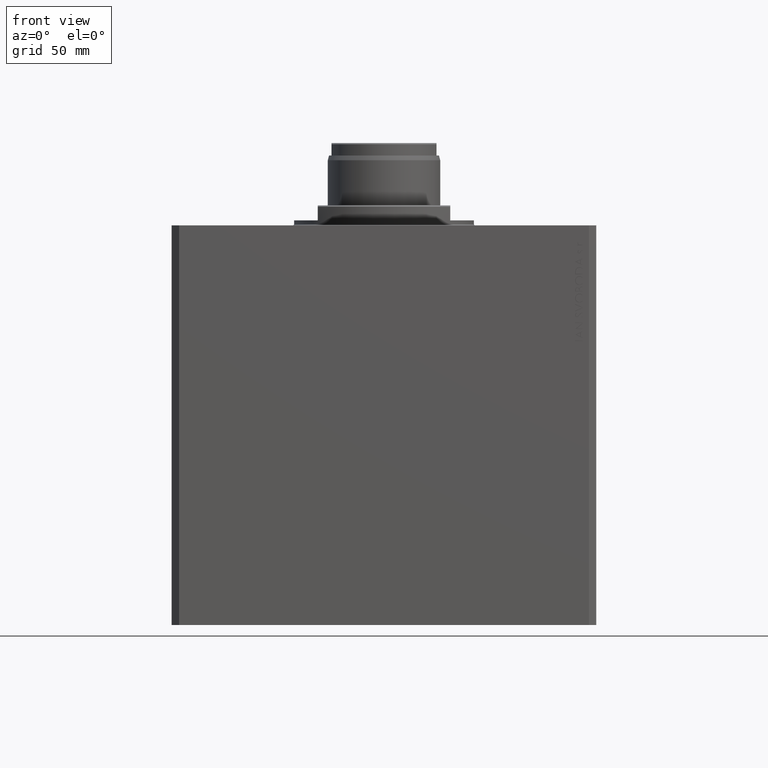
[diagram: clean part render]
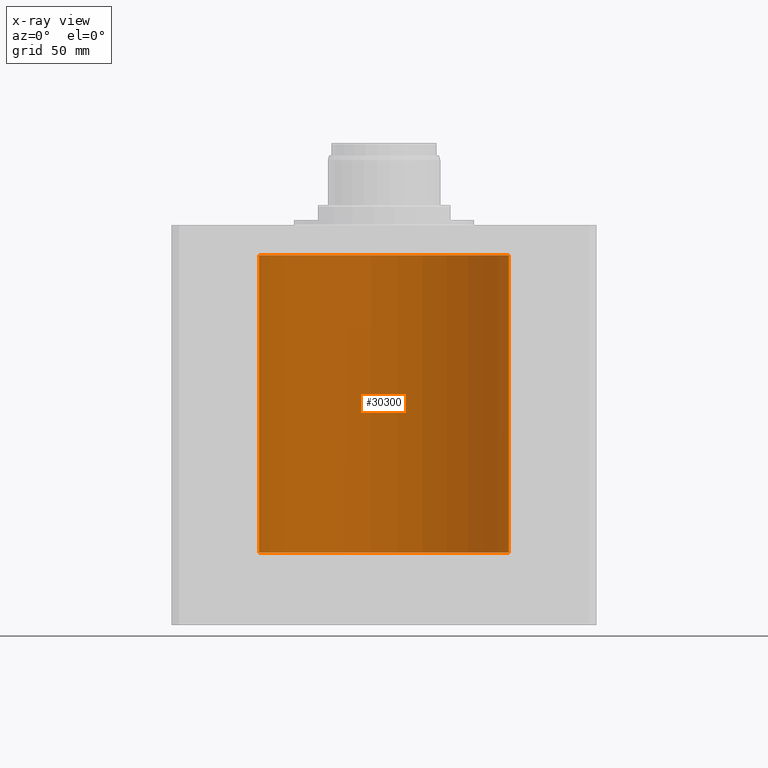
[diagram: x-ray — body ghosted, one internal face saturated and labeled with its STEP entity id]
A machine part, front view, then the same camera in x-ray: the body is ghosted and one INTERNAL B-rep face — a face not visible from any outside direction — is saturated and labeled: STEP entity #30300.
In plain terms, the highlighted cylindrical surface (partial cylindrical patch) has radius 50 mm, axis along (0, 0, 1).
Its self-contained STEP definition (entity closure, byte-faithful):
#314 = VECTOR ( 'NONE', #33519, 1000.000000000000000 ) ;
#3832 = ORIENTED_EDGE ( 'NONE', *, *, #25030, .F. ) ;
#4862 = DIRECTION ( 'NONE',  ( 1.000000000000000000, 0.000000000000000000, 0.000000000000000000 ) ) ;
#5268 = LINE ( 'NONE', #19083, #22372 ) ;
#5830 = CARTESIAN_POINT ( 'NONE',  ( 0.000000000000000000, 0.000000000000000000, -131.0000000000000000 ) ) ;
#8351 = CIRCLE ( 'NONE', #34701, 50.00000000000000000 ) ;
#9800 = CYLINDRICAL_SURFACE ( 'NONE', #22532, 50.00000000000000000 ) ;
#10297 = CIRCLE ( 'NONE', #34514, 50.00000000000000000 ) ;
#12866 = CARTESIAN_POINT ( 'NONE',  ( 50.00000000000000000, 0.000000000000000000, -131.0000000000000000 ) ) ;
#14004 = VERTEX_POINT ( 'NONE', #35098 ) ;
#14129 = EDGE_CURVE ( 'NONE', #43224, #14004, #22813, .T. ) ;
#14247 = DIRECTION ( 'NONE',  ( -0.000000000000000000, -0.000000000000000000, 1.000000000000000000 ) ) ;
#16079 = DIRECTION ( 'NONE',  ( 0.000000000000000000, 0.000000000000000000, 1.000000000000000000 ) ) ;
#16708 = CARTESIAN_POINT ( 'NONE',  ( 0.000000000000000000, 0.000000000000000000, -131.0000000000000000 ) ) ;
#19083 = CARTESIAN_POINT ( 'NONE',  ( 50.00000000000000000, 0.000000000000000000, -131.0000000000000000 ) ) ;
#19783 = CARTESIAN_POINT ( 'NONE',  ( 50.00000000000000000, 0.000000000000000000, -12.00000000000000000 ) ) ;
#21985 = ORIENTED_EDGE ( 'NONE', *, *, #24437, .T. ) ;
#22372 = VECTOR ( 'NONE', #39152, 1000.000000000000000 ) ;
#22528 = CARTESIAN_POINT ( 'NONE',  ( -50.00000000000000000, 6.123233995736766085E-15, -131.0000000000000000 ) ) ;
#22532 = AXIS2_PLACEMENT_3D ( 'NONE', #16708, #14247, #4862 ) ;
#22813 = LINE ( 'NONE', #23690, #314 ) ;
#22998 = DIRECTION ( 'NONE',  ( 1.000000000000000000, 0.000000000000000000, 0.000000000000000000 ) ) ;
#23405 = VERTEX_POINT ( 'NONE', #19783 ) ;
#23624 = ORIENTED_EDGE ( 'NONE', *, *, #32437, .T. ) ;
#23654 = DIRECTION ( 'NONE',  ( 0.000000000000000000, 0.000000000000000000, 1.000000000000000000 ) ) ;
#23690 = CARTESIAN_POINT ( 'NONE',  ( -50.00000000000000000, 6.123233995736766085E-15, -131.0000000000000000 ) ) ;
#24437 = EDGE_CURVE ( 'NONE', #39794, #23405, #5268, .T. ) ;
#25030 = EDGE_CURVE ( 'NONE', #39794, #43224, #10297, .T. ) ;
#25128 = EDGE_LOOP ( 'NONE', ( #35524, #3832, #21985, #23624 ) ) ;
#29673 = DIRECTION ( 'NONE',  ( 1.000000000000000000, 0.000000000000000000, 0.000000000000000000 ) ) ;
#29911 = CARTESIAN_POINT ( 'NONE',  ( 0.000000000000000000, 0.000000000000000000, -12.00000000000000000 ) ) ;
#30300 = ADVANCED_FACE ( 'NONE', ( #40325 ), #9800, .F. ) ;
#32437 = EDGE_CURVE ( 'NONE', #23405, #14004, #8351, .T. ) ;
#33519 = DIRECTION ( 'NONE',  ( -0.000000000000000000, -0.000000000000000000, 1.000000000000000000 ) ) ;
#34514 = AXIS2_PLACEMENT_3D ( 'NONE', #5830, #16079, #29673 ) ;
#34701 = AXIS2_PLACEMENT_3D ( 'NONE', #29911, #23654, #22998 ) ;
#35098 = CARTESIAN_POINT ( 'NONE',  ( -50.00000000000000000, 6.123233995736766085E-15, -12.00000000000000000 ) ) ;
#35524 = ORIENTED_EDGE ( 'NONE', *, *, #14129, .F. ) ;
#39152 = DIRECTION ( 'NONE',  ( -0.000000000000000000, -0.000000000000000000, 1.000000000000000000 ) ) ;
#39794 = VERTEX_POINT ( 'NONE', #12866 ) ;
#40325 = FACE_OUTER_BOUND ( 'NONE', #25128, .T. ) ;
#43224 = VERTEX_POINT ( 'NONE', #22528 ) ;